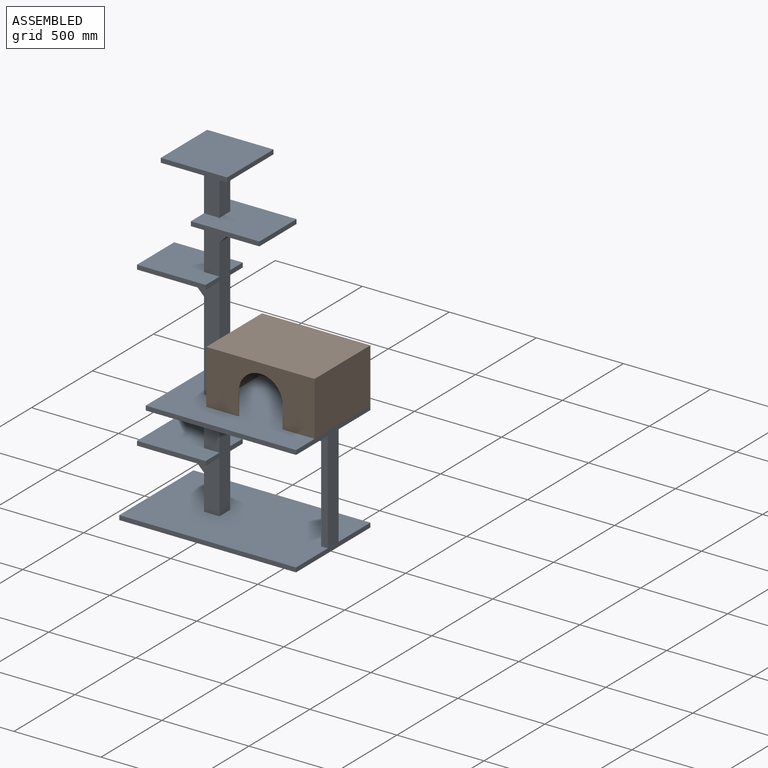
[diagram: assembled view]
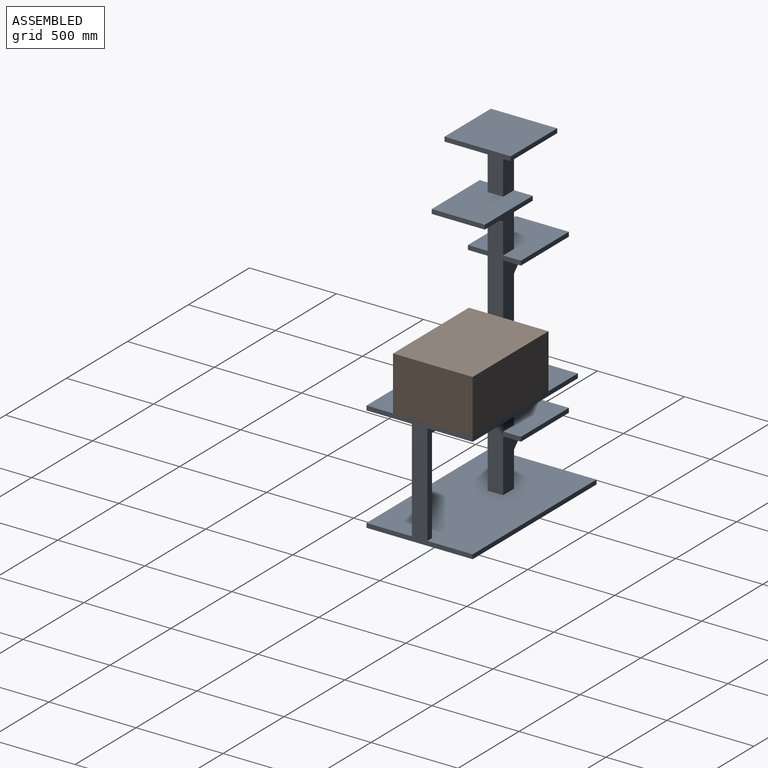
[diagram: assembled view, second angle]
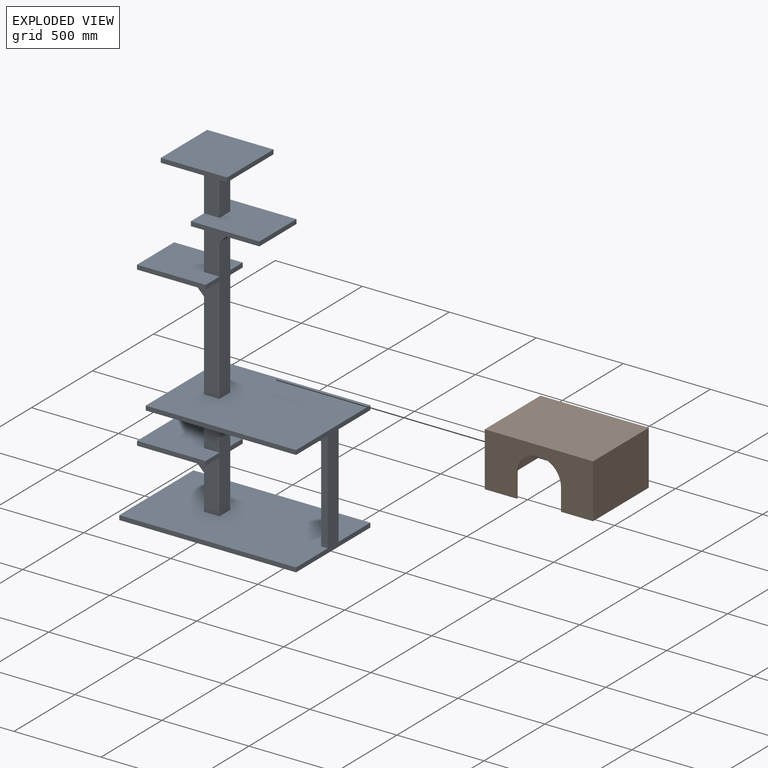
[diagram: exploded view]
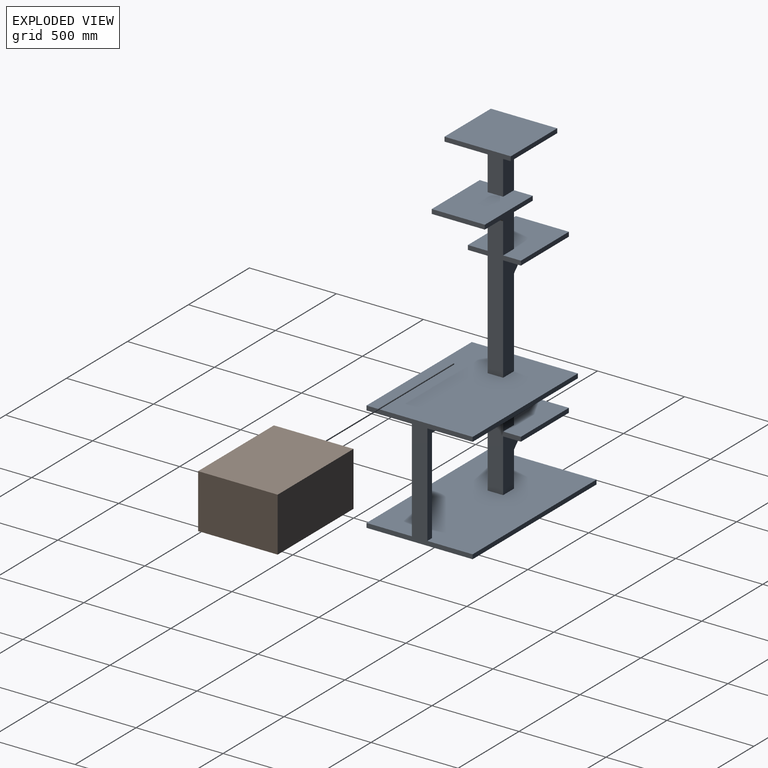
[diagram: exploded view, second angle]
ASSEMBLY  parts=2 mates=3
PART A: 54 faces, bbox 1016x609.6x1879.6 mm
  f0: plane 279.4x190.5mm, normal (0,-1,0), area 29999.9mm2, adj f25,f27,f41,f42,f43
  f1: plane 279.4x190.5mm, normal (0,1,0), area 29999.9mm2, adj f25,f27,f41,f42,f43
  f2: plane 279.4x88.9mm, normal (1,0,0), area 24838.7mm2, adj f26,f28,f47,f48
  f3: plane 609.6x190.5mm, normal (0,-1,0), area 59354.7mm2, adj f5,f23,f25,f36,f37
  f4: plane 609.6x190.5mm, normal (0,1,0), area 59354.7mm2, adj f5,f23,f25,f36,f37
  f5: plane 508x88.9mm, normal (-1,0,0), area 45161.2mm2, adj f3,f4,f23,f36
  f6: plane 546.1x88.9mm, normal (-1,0,0), area 48548.3mm2, adj f12,f18,f19,f35
  f7: plane 304.8x190.5mm, normal (0,1,0), area 32258mm2, adj f9,f11,f12,f29,f30
  f8: plane 304.8x190.5mm, normal (0,-1,0), area 32258mm2, adj f9,f11,f12,f29,f30
  f9: plane 203.2x88.9mm, normal (-1,0,0), area 18064.5mm2, adj f7,f8,f12,f29
  f10: plane 254x88.9mm, normal (-1,0,0), area 22580.6mm2, adj f18,f19,f24,f34
  f11: plane 546.1x304.8mm, normal (1,0,0), area 54032.1mm2, adj f7,f8,f12,f18,f19,f30,f31,f33
  f12: plane 1016x609.6mm, normal (0,0,1), area 608063.3mm2, adj f6,f7,f8,f9,f11,f13,f14,f15
  f13: plane 609.6x25.4mm, normal (-1,0,0), area 15483.8mm2, adj f12,f14,f16,f17
  f14: plane 1016x25.4mm, normal (0,-1,0), area 25806.4mm2, adj f12,f13,f15,f17
  f15: plane 635x609.6mm, normal (1,0,0), area 82903.1mm2, adj f12,f14,f16,f17,f18,f19,f20,f22
  f16: plane 1016x25.4mm, normal (0,1,0), area 25806.4mm2, adj f12,f13,f15,f17
  f17: plane 1016x609.6mm, normal (0,0,-1), area 619353.6mm2, adj f13,f14,f15,f16
  f18: plane 711.2x584.2mm, normal (0,1,0), area 67096.6mm2, adj f6,f10,f11,f12,f15,f24,f34,f35
  f19: plane 711.2x584.2mm, normal (0,-1,0), area 67096.6mm2, adj f6,f10,f11,f12,f15,f24,f34,f35
  f20: plane 863.6x25.4mm, normal (0,1,0), area 21935.4mm2, adj f15,f21,f23,f24
  f21: plane 609.6x25.4mm, normal (-1,0,0), area 15483.8mm2, adj f20,f22,f23,f24
  f22: plane 863.6x25.4mm, normal (0,-1,0), area 21935.4mm2, adj f15,f21,f23,f24
  f23: plane 863.6x609.6mm, normal (0,0,1), area 518547.4mm2, adj f3,f4,f5,f15,f20,f21,f22,f25
  f24: plane 863.6x609.6mm, normal (0,0,-1), area 463224.9mm2, adj f10,f15,f18,f19,f20,f21,f22
  f25: plane 812.8x304.8mm, normal (1,0,0), area 77741.8mm2, adj f0,f1,f3,f4,f23,f37,f38,f40
  f26: plane 279.4x88.9mm, normal (0,-1,0), area 24838.7mm2, adj f2,f27,f47,f48
  f27: plane 584.2x304.8mm, normal (-1,0,0), area 57419.2mm2, adj f0,f1,f26,f28,f41,f43,f44,f46
  f28: plane 279.4x88.9mm, normal (0,1,0), area 24838.7mm2, adj f2,f27,f47,f48
  f29: plane 101.6x101.6mm, normal (-0.71,0,-0.71), area 12773.5mm2, adj f7,f8,f9,f30
  f30: plane 393.7x304.8mm, normal (0,0,-1), area 103064.3mm2, adj f7,f8,f11,f29,f31,f32,f33
  f31: plane 393.7x25.4mm, normal (0,1,0), area 10000mm2, adj f11,f30,f32,f34
  f32: plane 304.8x25.4mm, normal (-1,0,0), area 7741.9mm2, adj f30,f31,f33,f34
  f33: plane 393.7x25.4mm, normal (0,-1,0), area 10000mm2, adj f11,f30,f32,f34
  f34: plane 393.7x304.8mm, normal (0,0,1), area 112096.6mm2, adj f10,f11,f18,f19,f31,f32,f33
  f35: plane 584.2x88.9mm, normal (0,0,-1), area 51935.4mm2, adj f6,f11,f18,f19
  f36: plane 101.6x101.6mm, normal (-0.71,0,-0.71), area 12773.5mm2, adj f3,f4,f5,f37
  f37: plane 393.7x304.8mm, normal (0,0,-1), area 103064.3mm2, adj f3,f4,f25,f36,f38,f39,f40
  f38: plane 393.7x25.4mm, normal (0,1,0), area 10000mm2, adj f25,f37,f39,f41
  f39: plane 304.8x25.4mm, normal (-1,0,0), area 7741.9mm2, adj f37,f38,f40,f41
  f40: plane 393.7x25.4mm, normal (0,-1,0), area 10000mm2, adj f25,f37,f39,f41
  f41: plane 393.7x304.8mm, normal (0,0,1), area 112096.6mm2, adj f0,f1,f25,f27,f38,f39,f40
  f42: plane 101.6x101.6mm, normal (0.71,0,-0.71), area 12773.5mm2, adj f0,f1,f25,f43
  f43: plane 393.7x304.8mm, normal (0,0,-1), area 103064.3mm2, adj f0,f1,f27,f42,f44,f45,f46
  f44: plane 393.7x25.4mm, normal (0,-1,0), area 10000mm2, adj f27,f43,f45,f47
  f45: plane 304.8x25.4mm, normal (1,0,0), area 7741.9mm2, adj f43,f44,f46,f47
  f46: plane 393.7x25.4mm, normal (0,1,0), area 10000mm2, adj f27,f43,f45,f47
  f47: plane 393.7x304.8mm, normal (0,0,1), area 112096.5mm2, adj f2,f26,f27,f28,f44,f45,f46
  f48: plane 381x381mm, normal (0,0,-1), area 137257.8mm2, adj f2,f26,f27,f28,f49,f50,f51,f52
  f49: plane 381x25.4mm, normal (0,1,0), area 9677.4mm2, adj f48,f50,f52,f53
  f50: plane 381x25.4mm, normal (-1,0,0), area 9677.4mm2, adj f48,f49,f51,f53
  f51: plane 381x25.4mm, normal (0,-1,0), area 9677.4mm2, adj f48,f50,f52,f53
  f52: plane 381x25.4mm, normal (1,0,0), area 9677.4mm2, adj f48,f49,f51,f53
  f53: plane 381x381mm, normal (0,0,1), area 145161mm2, adj f49,f50,f51,f52
PART B: 26 faces, bbox 622.3x457.2x311.2 mm
  f0: plane 406.4x19.05mm, normal (-1,0,0), area 7741.9mm2, adj f5,f12,f21,f24
  f1: plane 406.4x19.05mm, normal (1,0,0), area 7741.9mm2, adj f5,f12,f20,f24
  f2: plane 533.4x266.7mm, normal (0,-1,0), area 142257.8mm2, adj f4,f13,f16,f22
  f3: plane 266.7x19.05mm, normal (-1,0,0), area 5080.6mm2, adj f12,f14,f16,f23
  f4: plane 266.7x19.05mm, normal (1,0,0), area 5080.6mm2, adj f2,f5,f16,f22
  f5: plane 609.6x304.8mm, normal (0,-1,0), area 42096.7mm2, adj f0,f1,f4,f6,f7,f13,f16,f20
  f6: plane 406.4x285.75mm, normal (-1,0,0), area 116128.8mm2, adj f5,f12,f16,f21
  f7: plane 406.4x285.75mm, normal (1,0,0), area 116128.8mm2, adj f5,f12,f16,f20
  f8: plane 622.3x311.15mm, normal (0,-1,0), area 136035.3mm2, adj f9,f11,f16,f17,f18,f19,f25
  f9: plane 457.2x311.15mm, normal (1,0,0), area 142257.8mm2, adj f8,f10,f16,f25
  f10: plane 622.3x311.15mm, normal (0,1,0), area 193628.6mm2, adj f9,f11,f16,f25
  f11: plane 457.2x311.15mm, normal (-1,0,0), area 142257.8mm2, adj f8,f10,f16,f25
  f12: plane 609.6x304.8mm, normal (0,1,0), area 42096.7mm2, adj f0,f1,f3,f6,f7,f15,f16,f20
  f13: plane 266.7x19.05mm, normal (-1,0,0), area 5080.6mm2, adj f2,f5,f16,f22
  f14: plane 533.4x266.7mm, normal (0,1,0), area 84664.4mm2, adj f3,f15,f16,f17,f18,f19,f23
  f15: plane 266.7x19.05mm, normal (1,0,0), area 5080.6mm2, adj f12,f14,f16,f23
  f16: plane 622.3x457.2mm, normal (0,0,-1), area 14838.7mm2, adj f2,f3,f4,f5,f6,f7,f8,f9
  f17: cylinder r=127mm len=254mm, axis (0,-1,0), area 2533.5mm2, adj f8,f14,f18,f19
  f18: plane 127x6.35mm, normal (1,0,0), area 806.5mm2, adj f8,f14,f16,f17
  f19: plane 127x6.35mm, normal (-1,0,0), area 806.5mm2, adj f8,f14,f16,f17
  f20: plane 406.4x38.1mm, normal (0,0,-1), area 15483.8mm2, adj f1,f5,f7,f12
  f21: plane 406.4x38.1mm, normal (0,0,-1), area 15483.8mm2, adj f0,f5,f6,f12
  f22: plane 533.4x19.05mm, normal (0,0,-1), area 10161.3mm2, adj f2,f4,f5,f13
  f23: plane 533.4x19.05mm, normal (0,0,-1), area 10161.3mm2, adj f3,f12,f14,f15
  f24: plane 533.4x406.4mm, normal (0,0,-1), area 216773.8mm2, adj f0,f1,f5,f12
  f25: plane 622.3x457.2mm, normal (0,0,1), area 284515.6mm2, adj f8,f9,f10,f11
PLACE A t=(-402.92,153.09,77.27)mm
PLACE B t=(345.92,123.39,712.27)mm
MATE planar A.f25 <-> B.f11  axis (1,0,0) through (-9.22,502.34,1017.07)mm
MATE planar A.f20 <-> B.f10  axis (0,1,0) through (181.28,762.69,699.57)mm
MATE planar A.f23 <-> B.f16  axis (0,0,1) through (184.86,457.89,712.27)mm
